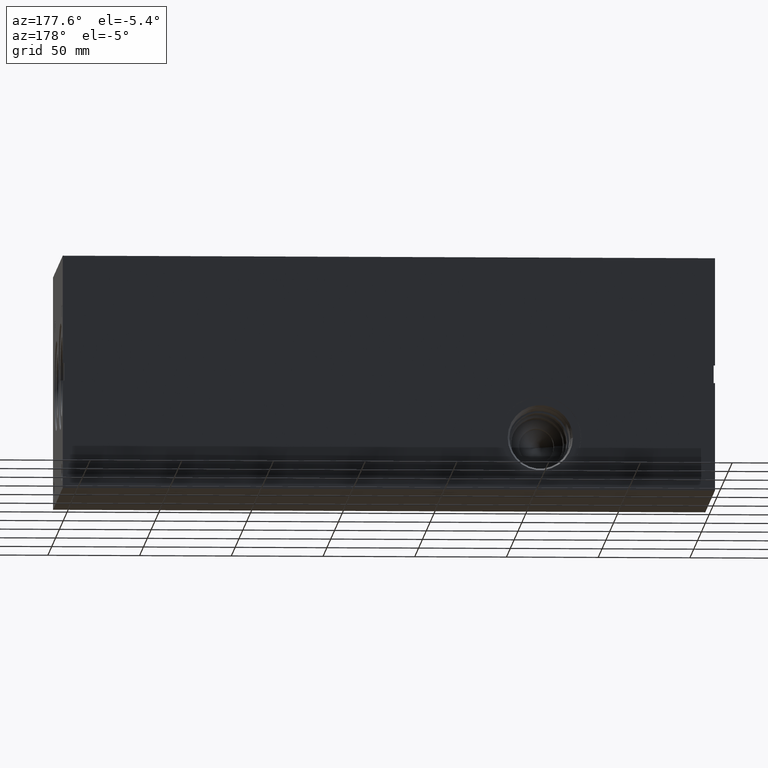
[diagram: clean part render]
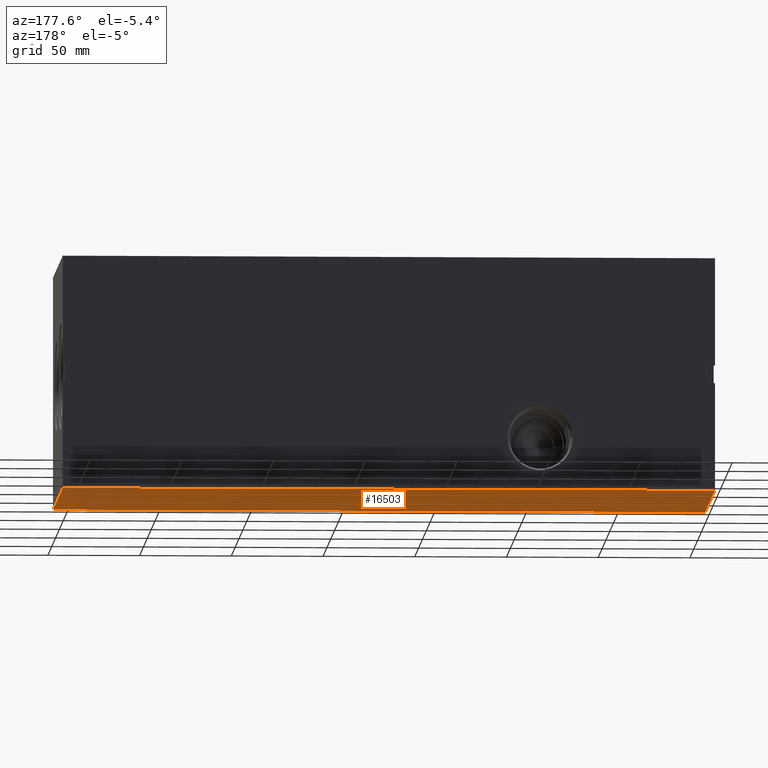
[diagram: same view with one face highlighted and labeled with its STEP entity id]
A machine part, auxiliary view. The second image highlights one B-rep face of the part: STEP entity #16503.
In plain terms, the highlighted planar face has unit normal (0, 0, 1).
Its self-contained STEP definition (entity closure, byte-faithful):
#2353=FACE_OUTER_BOUND('',#3374,.T.);
#3374=EDGE_LOOP('',(#14664,#14665,#14666,#14667));
#3408=LINE('',#21544,#4821);
#4446=LINE('',#26783,#5859);
#4491=LINE('',#27024,#5904);
#4786=LINE('',#28670,#6199);
#4821=VECTOR('',#17759,10.);
#5859=VECTOR('',#19501,10.);
#5904=VECTOR('',#19580,10.);
#6199=VECTOR('',#21463,10.);
#6223=VERTEX_POINT('',#21542);
#6224=VERTEX_POINT('',#21543);
#7177=VERTEX_POINT('',#26781);
#7228=VERTEX_POINT('',#27023);
#7819=EDGE_CURVE('',#6223,#6224,#3408,.T.);
#9238=EDGE_CURVE('',#7177,#6223,#4446,.T.);
#9306=EDGE_CURVE('',#6224,#7228,#4491,.T.);
#10078=EDGE_CURVE('',#7228,#7177,#4786,.T.);
#14664=ORIENTED_EDGE('',*,*,#7819,.F.);
#14665=ORIENTED_EDGE('',*,*,#9238,.F.);
#14666=ORIENTED_EDGE('',*,*,#10078,.F.);
#14667=ORIENTED_EDGE('',*,*,#9306,.F.);
#15095=PLANE('',#17697);
#16503=ADVANCED_FACE('',(#2353),#15095,.F.);
#17697=AXIS2_PLACEMENT_3D('',#28675,#21471,#21472);
#17759=DIRECTION('',(1.,0.,0.));
#19501=DIRECTION('',(0.,-1.,0.));
#19580=DIRECTION('',(0.,1.,0.));
#21463=DIRECTION('',(-1.,0.,0.));
#21471=DIRECTION('center_axis',(0.,0.,1.));
#21472=DIRECTION('ref_axis',(1.,0.,0.));
#21542=CARTESIAN_POINT('',(0.,0.,0.));
#21543=CARTESIAN_POINT('',(355.6,0.,0.));
#21544=CARTESIAN_POINT('',(0.,0.,0.));
#26781=CARTESIAN_POINT('',(0.,127.,0.));
#26783=CARTESIAN_POINT('',(0.,127.,0.));
#27023=CARTESIAN_POINT('',(355.6,127.,0.));
#27024=CARTESIAN_POINT('',(355.6,0.,0.));
#28670=CARTESIAN_POINT('',(355.6,127.,0.));
#28675=CARTESIAN_POINT('Origin',(177.8,63.5,0.));